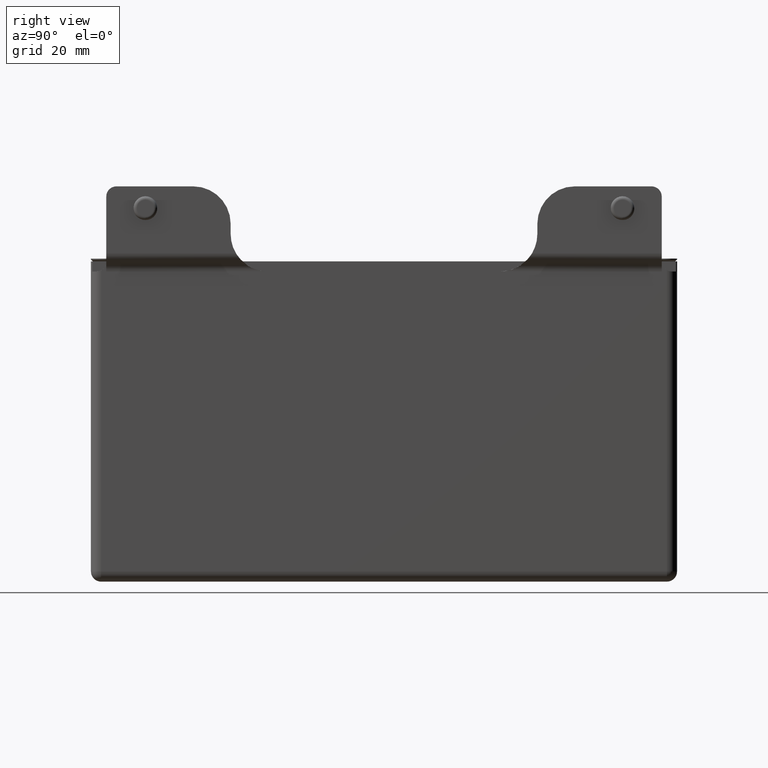
[diagram: clean part render]
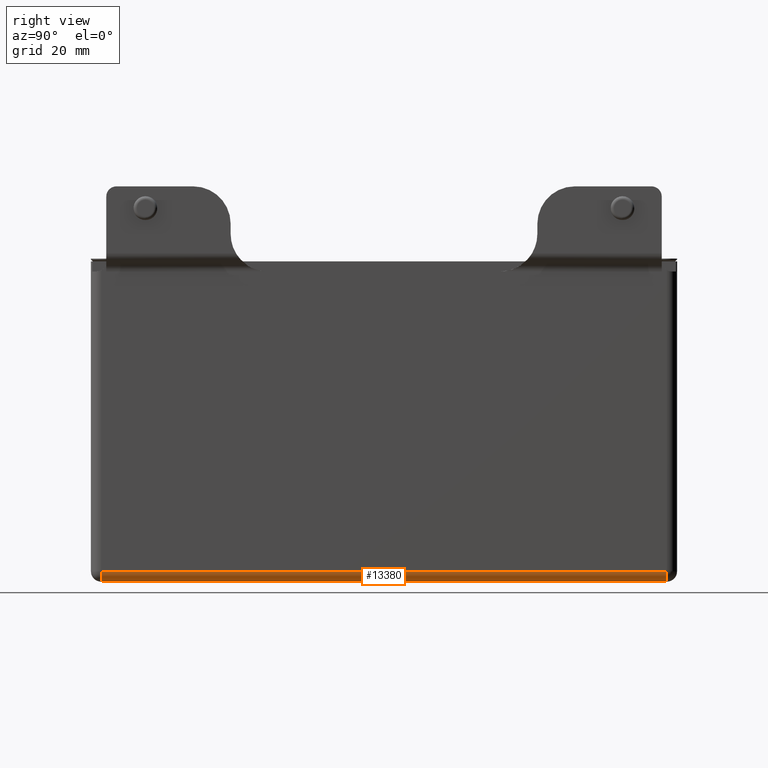
[diagram: same view with one face highlighted and labeled with its STEP entity id]
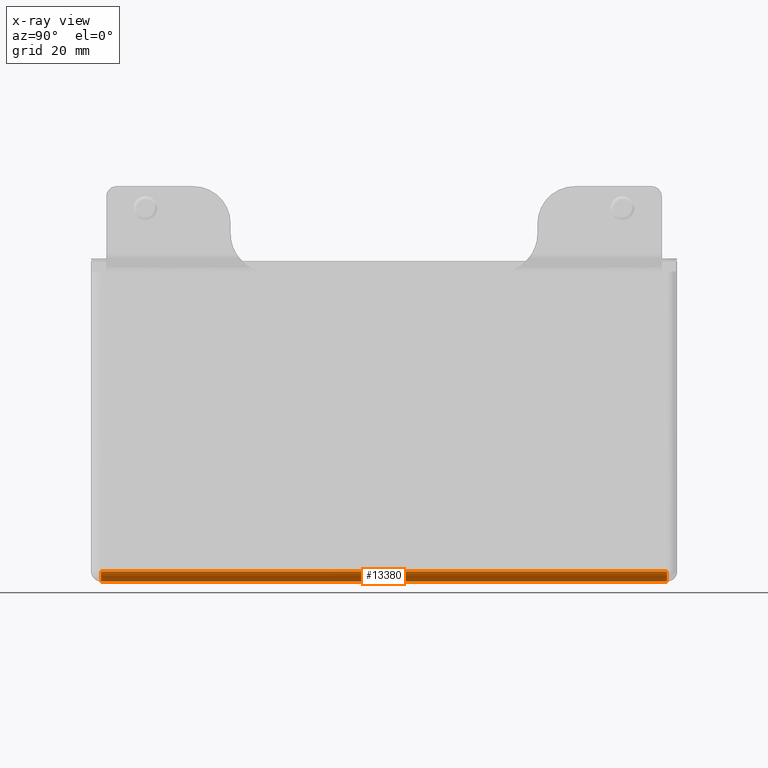
[diagram: x-ray of the same camera — body ghosted, the highlighted face saturated]
A machine part, right view. The second image highlights one B-rep face of the part: STEP entity #13380.
The next image is the same camera in x-ray: the body ghosted, the highlighted face saturated — about 0% of this face is hidden behind the body in this view.
In plain terms, the highlighted cylindrical surface (edge-blend (fillet) strip) has radius 3 mm, axis along (-0, 1, 0).
Its self-contained STEP definition (entity closure, byte-faithful):
#2015 = DIRECTION ( 'NONE',  ( 0.000000000000000000, 0.000000000000000000, 1.000000000000000000 ) ) ;
#2401 = EDGE_CURVE ( 'NONE', #23482, #23212, #12729, .T. ) ;
#4075 = EDGE_CURVE ( 'NONE', #34463, #23212, #34874, .T. ) ;
#5820 = DIRECTION ( 'NONE',  ( -0.000000000000000000, 1.000000000000000000, -0.000000000000000000 ) ) ;
#6082 = AXIS2_PLACEMENT_3D ( 'NONE', #8875, #5820, #14727 ) ;
#6717 = CARTESIAN_POINT ( 'NONE',  ( 25.24999999999999289, 86.00000000000000000, -42.49999999999999289 ) ) ;
#8875 = CARTESIAN_POINT ( 'NONE',  ( 22.25000000000001776, -82.99999999999997158, -42.49999999999999289 ) ) ;
#9135 = VERTEX_POINT ( 'NONE', #11851 ) ;
#10107 = ORIENTED_EDGE ( 'NONE', *, *, #2401, .T. ) ;
#10784 = CARTESIAN_POINT ( 'NONE',  ( 22.24999999999999645, 86.00000000000000000, -42.49999999999999289 ) ) ;
#11851 = CARTESIAN_POINT ( 'NONE',  ( 25.24999999999999289, 83.00000000000000000, -42.49999999999999289 ) ) ;
#12286 = AXIS2_PLACEMENT_3D ( 'NONE', #10784, #22103, #30257 ) ;
#12729 = CIRCLE ( 'NONE', #6082, 3.000000000000002665 ) ;
#13380 = ADVANCED_FACE ( 'NONE', ( #21112 ), #18462, .T. ) ;
#13396 = DIRECTION ( 'NONE',  ( -0.000000000000000000, 1.000000000000000000, 0.000000000000000000 ) ) ;
#14013 = CARTESIAN_POINT ( 'NONE',  ( 25.25000000000001421, -82.99999999999997158, -42.49999999999999289 ) ) ;
#14319 = CARTESIAN_POINT ( 'NONE',  ( 22.24999999999999645, 83.00000000000000000, -45.50000000000000000 ) ) ;
#14727 = DIRECTION ( 'NONE',  ( 0.000000000000000000, 0.000000000000000000, -1.000000000000000000 ) ) ;
#15768 = ORIENTED_EDGE ( 'NONE', *, *, #33915, .F. ) ;
#16696 = AXIS2_PLACEMENT_3D ( 'NONE', #27415, #13396, #2015 ) ;
#18462 = CYLINDRICAL_SURFACE ( 'NONE', #12286, 2.999999999999999112 ) ;
#21093 = CARTESIAN_POINT ( 'NONE',  ( 22.25000000000001776, -82.99999999999997158, -45.50000000000000000 ) ) ;
#21112 = FACE_OUTER_BOUND ( 'NONE', #26199, .T. ) ;
#21152 = LINE ( 'NONE', #6717, #34222 ) ;
#21572 = ORIENTED_EDGE ( 'NONE', *, *, #27973, .F. ) ;
#21804 = VECTOR ( 'NONE', #28498, 1000.000000000000000 ) ;
#22103 = DIRECTION ( 'NONE',  ( -1.210272192541958616E-16, 1.000000000000000000, -0.000000000000000000 ) ) ;
#23212 = VERTEX_POINT ( 'NONE', #21093 ) ;
#23482 = VERTEX_POINT ( 'NONE', #14013 ) ;
#23561 = CIRCLE ( 'NONE', #16696, 3.000000000000002665 ) ;
#26199 = EDGE_LOOP ( 'NONE', ( #10107, #26850, #15768, #21572 ) ) ;
#26220 = DIRECTION ( 'NONE',  ( -1.210272192541958616E-16, 1.000000000000000000, 0.000000000000000000 ) ) ;
#26850 = ORIENTED_EDGE ( 'NONE', *, *, #4075, .F. ) ;
#27415 = CARTESIAN_POINT ( 'NONE',  ( 22.24999999999999645, 83.00000000000000000, -42.49999999999999289 ) ) ;
#27973 = EDGE_CURVE ( 'NONE', #23482, #9135, #21152, .T. ) ;
#28498 = DIRECTION ( 'NONE',  ( 1.210272192541958616E-16, -1.000000000000000000, 0.000000000000000000 ) ) ;
#30257 = DIRECTION ( 'NONE',  ( -1.000000000000000000, 0.000000000000000000, 0.000000000000000000 ) ) ;
#33915 = EDGE_CURVE ( 'NONE', #9135, #34463, #23561, .T. ) ;
#34222 = VECTOR ( 'NONE', #26220, 1000.000000000000000 ) ;
#34312 = CARTESIAN_POINT ( 'NONE',  ( 22.25000000000000711, 2.692855628405858579E-15, -45.50000000000000000 ) ) ;
#34463 = VERTEX_POINT ( 'NONE', #14319 ) ;
#34874 = LINE ( 'NONE', #34312, #21804 ) ;